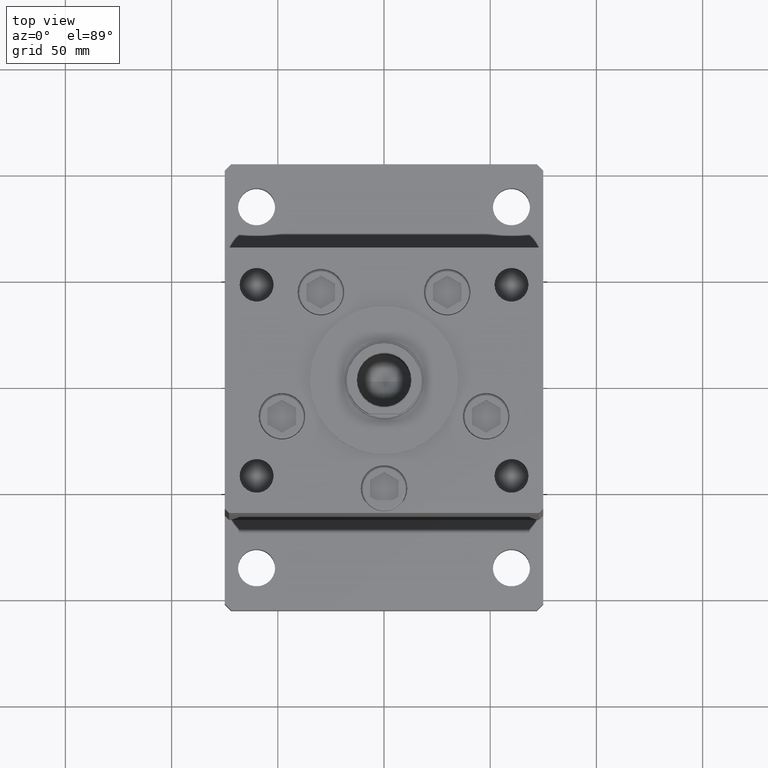
[diagram: clean part render]
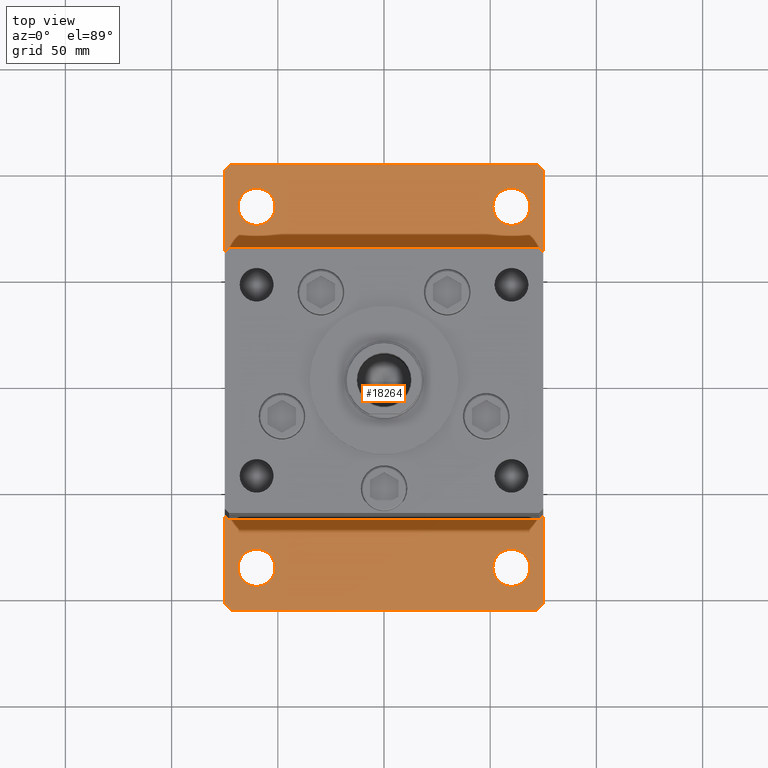
[diagram: same view with one face highlighted and labeled with its STEP entity id]
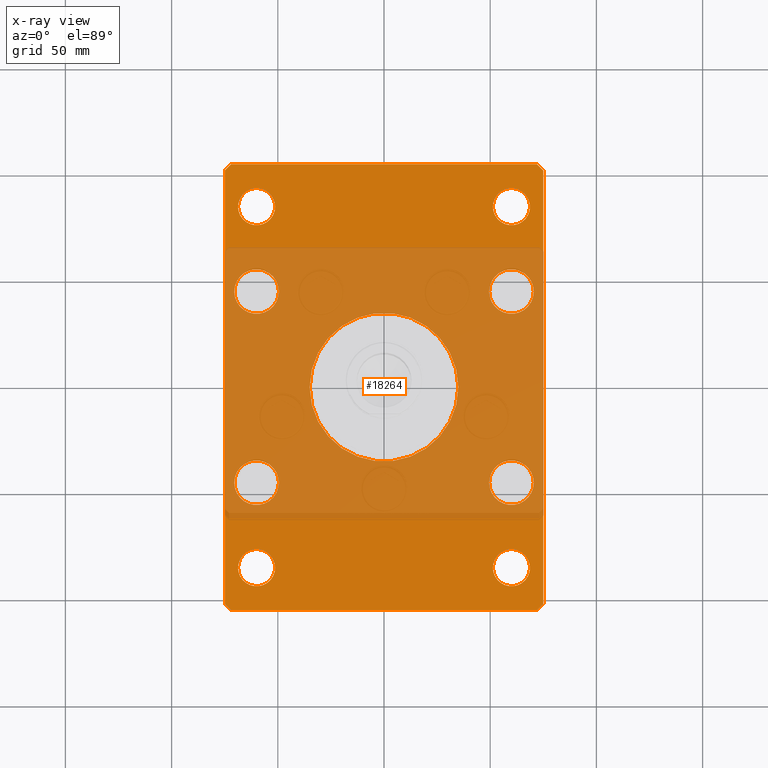
[diagram: x-ray of the same camera — body ghosted, the highlighted face saturated]
A machine part, top view. The second image highlights one B-rep face of the part: STEP entity #18264.
The next image is the same camera in x-ray: the body ghosted, the highlighted face saturated — about 55% of this face is hidden behind the body in this view.
In plain terms, the highlighted planar face has unit normal (0, 0, 1).
Its self-contained STEP definition (entity closure, byte-faithful):
#41 = ORIENTED_EDGE ( 'NONE', *, *, #27299, .T. ) ;
#538 = AXIS2_PLACEMENT_3D ( 'NONE', #43770, #6579, #22611 ) ;
#616 = VERTEX_POINT ( 'NONE', #46092 ) ;
#952 = VERTEX_POINT ( 'NONE', #38883 ) ;
#971 = ORIENTED_EDGE ( 'NONE', *, *, #37692, .F. ) ;
#1232 = VECTOR ( 'NONE', #52012, 1000.000000000000114 ) ;
#1340 = AXIS2_PLACEMENT_3D ( 'NONE', #27017, #17797, #9900 ) ;
#1426 = LINE ( 'NONE', #17998, #46339 ) ;
#1570 = CARTESIAN_POINT ( 'NONE',  ( -68.74999999999997158, -85.00000000000001421, 27.00000000000000000 ) ) ;
#1586 = CARTESIAN_POINT ( 'NONE',  ( 49.50000000000000000, -45.00000000000000711, 27.00000000000000000 ) ) ;
#1652 = CARTESIAN_POINT ( 'NONE',  ( 0.000000000000000000, 0.000000000000000000, 27.00000000000000000 ) ) ;
#1720 = AXIS2_PLACEMENT_3D ( 'NONE', #3481, #20053, #36611 ) ;
#2102 = EDGE_LOOP ( 'NONE', ( #30666, #45894 ) ) ;
#2457 = DIRECTION ( 'NONE',  ( 1.000000000000000000, 0.000000000000000000, 0.000000000000000000 ) ) ;
#3292 = DIRECTION ( 'NONE',  ( -1.000000000000000000, -1.927470528863118062E-16, 0.000000000000000000 ) ) ;
#3416 = CARTESIAN_POINT ( 'NONE',  ( 72.00000000000001421, -104.9999999999999005, 27.00000000000000000 ) ) ;
#3481 = CARTESIAN_POINT ( 'NONE',  ( -60.00000000000000711, 84.99999999999997158, 27.00000000000000000 ) ) ;
#3588 = DIRECTION ( 'NONE',  ( 1.000000000000000000, 0.000000000000000000, 0.000000000000000000 ) ) ;
#3709 = VERTEX_POINT ( 'NONE', #4363 ) ;
#4363 = CARTESIAN_POINT ( 'NONE',  ( 35.00000000000000711, 4.286263797015737285E-15, 27.00000000000000000 ) ) ;
#4417 = EDGE_CURVE ( 'NONE', #36140, #37148, #28545, .T. ) ;
#4455 = CARTESIAN_POINT ( 'NONE',  ( -74.99999999999998579, -102.0000000000000142, 27.00000000000000000 ) ) ;
#4516 = VERTEX_POINT ( 'NONE', #4904 ) ;
#4586 = CARTESIAN_POINT ( 'NONE',  ( 59.99999999999997158, -85.00000000000001421, 27.00000000000000000 ) ) ;
#4600 = CIRCLE ( 'NONE', #47058, 10.50000000000000178 ) ;
#4627 = VERTEX_POINT ( 'NONE', #24415 ) ;
#4636 = CARTESIAN_POINT ( 'NONE',  ( 60.00000000000000000, 84.99999999999998579, 27.00000000000000000 ) ) ;
#4859 = ORIENTED_EDGE ( 'NONE', *, *, #19368, .T. ) ;
#4904 = CARTESIAN_POINT ( 'NONE',  ( 68.74999999999997158, -85.00000000000001421, 27.00000000000000000 ) ) ;
#5153 = CIRCLE ( 'NONE', #1720, 8.750000000000007105 ) ;
#5232 = CARTESIAN_POINT ( 'NONE',  ( 75.00000000000001421, 102.0000000000000142, 27.00000000000000000 ) ) ;
#5271 = EDGE_CURVE ( 'NONE', #47930, #6363, #1426, .T. ) ;
#5556 = VERTEX_POINT ( 'NONE', #34632 ) ;
#6041 = EDGE_LOOP ( 'NONE', ( #42611, #52729 ) ) ;
#6363 = VERTEX_POINT ( 'NONE', #4455 ) ;
#6541 = CARTESIAN_POINT ( 'NONE',  ( 60.00000000000000000, -45.00000000000000711, 27.00000000000000000 ) ) ;
#6579 = DIRECTION ( 'NONE',  ( 0.000000000000000000, 0.000000000000000000, 1.000000000000000000 ) ) ;
#6797 = ORIENTED_EDGE ( 'NONE', *, *, #8470, .F. ) ;
#7016 = DIRECTION ( 'NONE',  ( 0.000000000000000000, 0.000000000000000000, 1.000000000000000000 ) ) ;
#7025 = VERTEX_POINT ( 'NONE', #39506 ) ;
#7387 = ORIENTED_EDGE ( 'NONE', *, *, #19939, .T. ) ;
#7532 = EDGE_CURVE ( 'NONE', #616, #3709, #46381, .T. ) ;
#7542 = AXIS2_PLACEMENT_3D ( 'NONE', #23455, #40013, #23722 ) ;
#7803 = DIRECTION ( 'NONE',  ( 1.000000000000000000, 0.000000000000000000, 0.000000000000000000 ) ) ;
#7863 = FACE_BOUND ( 'NONE', #43469, .T. ) ;
#7909 = CARTESIAN_POINT ( 'NONE',  ( 49.50000000000000000, 45.00000000000000711, 27.00000000000000000 ) ) ;
#8470 = EDGE_CURVE ( 'NONE', #20830, #7025, #45407, .T. ) ;
#9004 = CARTESIAN_POINT ( 'NONE',  ( 60.00000000000000000, 45.00000000000000711, 27.00000000000000000 ) ) ;
#9804 = DIRECTION ( 'NONE',  ( 1.000000000000000000, 0.000000000000000000, 0.000000000000000000 ) ) ;
#9900 = DIRECTION ( 'NONE',  ( 1.000000000000000000, 0.000000000000000000, 0.000000000000000000 ) ) ;
#9933 = AXIS2_PLACEMENT_3D ( 'NONE', #4586, #45582, #11918 ) ;
#10030 = CARTESIAN_POINT ( 'NONE',  ( -71.99999999999998579, -105.0000000000000142, 27.00000000000000000 ) ) ;
#10138 = VECTOR ( 'NONE', #12650, 1000.000000000000114 ) ;
#10151 = EDGE_CURVE ( 'NONE', #4627, #12962, #22893, .T. ) ;
#10152 = ORIENTED_EDGE ( 'NONE', *, *, #29744, .T. ) ;
#10282 = DIRECTION ( 'NONE',  ( 1.000000000000000000, 0.000000000000000000, 0.000000000000000000 ) ) ;
#10329 = DIRECTION ( 'NONE',  ( 0.000000000000000000, 0.000000000000000000, 1.000000000000000000 ) ) ;
#10614 = ORIENTED_EDGE ( 'NONE', *, *, #53429, .F. ) ;
#11047 = EDGE_CURVE ( 'NONE', #18133, #4516, #53257, .T. ) ;
#11482 = ORIENTED_EDGE ( 'NONE', *, *, #4417, .T. ) ;
#11918 = DIRECTION ( 'NONE',  ( 1.000000000000000000, 0.000000000000000000, 0.000000000000000000 ) ) ;
#12199 = CARTESIAN_POINT ( 'NONE',  ( 0.000000000000000000, 0.000000000000000000, 27.00000000000000000 ) ) ;
#12379 = CIRCLE ( 'NONE', #49664, 8.750000000000007105 ) ;
#12467 = DIRECTION ( 'NONE',  ( 6.802837160693364103E-17, 1.000000000000000000, 0.000000000000000000 ) ) ;
#12650 = DIRECTION ( 'NONE',  ( -0.7071067811865459074, -0.7071067811865491270, 0.000000000000000000 ) ) ;
#12962 = VERTEX_POINT ( 'NONE', #14660 ) ;
#13002 = CARTESIAN_POINT ( 'NONE',  ( 75.00000000000000000, -101.9999999999999005, 27.00000000000000000 ) ) ;
#13169 = ORIENTED_EDGE ( 'NONE', *, *, #26804, .F. ) ;
#14660 = CARTESIAN_POINT ( 'NONE',  ( 51.24999999999998579, 84.99999999999998579, 27.00000000000000000 ) ) ;
#14750 = VERTEX_POINT ( 'NONE', #1586 ) ;
#14931 = EDGE_CURVE ( 'NONE', #5556, #45077, #43850, .T. ) ;
#14954 = CARTESIAN_POINT ( 'NONE',  ( -60.00000000000000000, -45.00000000000000000, 27.00000000000000000 ) ) ;
#15120 = AXIS2_PLACEMENT_3D ( 'NONE', #1652, #10329, #2457 ) ;
#15203 = VECTOR ( 'NONE', #20093, 1000.000000000000114 ) ;
#15226 = EDGE_LOOP ( 'NONE', ( #13169, #971 ) ) ;
#15625 = CIRCLE ( 'NONE', #32131, 10.49999999999999467 ) ;
#15723 = FACE_BOUND ( 'NONE', #49194, .T. ) ;
#15935 = CARTESIAN_POINT ( 'NONE',  ( -60.00000000000000000, 45.00000000000001421, 27.00000000000000000 ) ) ;
#16340 = CARTESIAN_POINT ( 'NONE',  ( 60.00000000000000000, -45.00000000000000711, 27.00000000000000000 ) ) ;
#16358 = CARTESIAN_POINT ( 'NONE',  ( -51.24999999999996447, -85.00000000000001421, 27.00000000000000000 ) ) ;
#16555 = LINE ( 'NONE', #21899, #15203 ) ;
#16557 = DIRECTION ( 'NONE',  ( 1.000000000000000000, 0.000000000000000000, 0.000000000000000000 ) ) ;
#16720 = EDGE_LOOP ( 'NONE', ( #10152, #4859, #49841, #7387, #11482, #38356, #35424, #41 ) ) ;
#16751 = ORIENTED_EDGE ( 'NONE', *, *, #39645, .F. ) ;
#17003 = AXIS2_PLACEMENT_3D ( 'NONE', #15935, #45270, #7803 ) ;
#17035 = DIRECTION ( 'NONE',  ( 1.000000000000000000, 0.000000000000000000, 0.000000000000000000 ) ) ;
#17200 = DIRECTION ( 'NONE',  ( 1.360567432138672081E-16, -1.000000000000000000, 0.000000000000000000 ) ) ;
#17790 = EDGE_LOOP ( 'NONE', ( #16751, #27655 ) ) ;
#17797 = DIRECTION ( 'NONE',  ( 0.000000000000000000, 0.000000000000000000, 1.000000000000000000 ) ) ;
#17879 = EDGE_CURVE ( 'NONE', #3709, #616, #39629, .T. ) ;
#17998 = CARTESIAN_POINT ( 'NONE',  ( -75.00000000000001421, 102.0000000000000000, 27.00000000000000000 ) ) ;
#18133 = VERTEX_POINT ( 'NONE', #42393 ) ;
#18225 = CARTESIAN_POINT ( 'NONE',  ( -68.75000000000000000, 84.99999999999997158, 27.00000000000000000 ) ) ;
#18264 = ADVANCED_FACE ( 'NONE', ( #20087, #32860, #45325, #49123, #48588, #20354, #53715, #15723, #7863, #40716 ), #27960, .T. ) ;
#19324 = VERTEX_POINT ( 'NONE', #27603 ) ;
#19368 = EDGE_CURVE ( 'NONE', #20531, #19324, #48754, .T. ) ;
#19562 = ORIENTED_EDGE ( 'NONE', *, *, #51375, .F. ) ;
#19665 = ORIENTED_EDGE ( 'NONE', *, *, #51807, .F. ) ;
#19939 = EDGE_CURVE ( 'NONE', #952, #36140, #42955, .T. ) ;
#20053 = DIRECTION ( 'NONE',  ( 0.000000000000000000, 0.000000000000000000, 1.000000000000000000 ) ) ;
#20087 = FACE_BOUND ( 'NONE', #2102, .T. ) ;
#20093 = DIRECTION ( 'NONE',  ( 0.7071067811865474617, -0.7071067811865474617, 0.000000000000000000 ) ) ;
#20255 = DIRECTION ( 'NONE',  ( 1.000000000000000000, 0.000000000000000000, 0.000000000000000000 ) ) ;
#20354 = FACE_OUTER_BOUND ( 'NONE', #16720, .T. ) ;
#20531 = VERTEX_POINT ( 'NONE', #21407 ) ;
#20626 = AXIS2_PLACEMENT_3D ( 'NONE', #9004, #42658, #33735 ) ;
#20816 = LINE ( 'NONE', #37382, #10138 ) ;
#20830 = VERTEX_POINT ( 'NONE', #21000 ) ;
#21000 = CARTESIAN_POINT ( 'NONE',  ( -70.50000000000000000, -45.00000000000000000, 27.00000000000000000 ) ) ;
#21407 = CARTESIAN_POINT ( 'NONE',  ( 72.00000000000001421, -104.9999999999999005, 27.00000000000000000 ) ) ;
#21529 = EDGE_LOOP ( 'NONE', ( #48025, #19562 ) ) ;
#21899 = CARTESIAN_POINT ( 'NONE',  ( -74.99999999999998579, -102.0000000000000142, 27.00000000000000000 ) ) ;
#21916 = CARTESIAN_POINT ( 'NONE',  ( -60.00000000000000000, -45.00000000000000000, 27.00000000000000000 ) ) ;
#22127 = VERTEX_POINT ( 'NONE', #7909 ) ;
#22236 = VECTOR ( 'NONE', #34766, 1000.000000000000000 ) ;
#22611 = DIRECTION ( 'NONE',  ( 1.000000000000000000, 0.000000000000000000, 0.000000000000000000 ) ) ;
#22893 = CIRCLE ( 'NONE', #47179, 8.750000000000007105 ) ;
#23455 = CARTESIAN_POINT ( 'NONE',  ( 60.00000000000000000, 84.99999999999998579, 27.00000000000000000 ) ) ;
#23556 = EDGE_CURVE ( 'NONE', #28713, #33393, #50832, .T. ) ;
#23722 = DIRECTION ( 'NONE',  ( 1.000000000000000000, 0.000000000000000000, 0.000000000000000000 ) ) ;
#23825 = CARTESIAN_POINT ( 'NONE',  ( 0.000000000000000000, 0.000000000000000000, 27.00000000000000000 ) ) ;
#24124 = CARTESIAN_POINT ( 'NONE',  ( 59.99999999999997158, -85.00000000000001421, 27.00000000000000000 ) ) ;
#24415 = CARTESIAN_POINT ( 'NONE',  ( 68.75000000000000000, 84.99999999999998579, 27.00000000000000000 ) ) ;
#24624 = EDGE_LOOP ( 'NONE', ( #19665, #52763 ) ) ;
#24748 = DIRECTION ( 'NONE',  ( 1.000000000000000000, 0.000000000000000000, 0.000000000000000000 ) ) ;
#25512 = LINE ( 'NONE', #13002, #42656 ) ;
#25740 = DIRECTION ( 'NONE',  ( 0.000000000000000000, 0.000000000000000000, 1.000000000000000000 ) ) ;
#25832 = LINE ( 'NONE', #10030, #22236 ) ;
#26350 = VECTOR ( 'NONE', #3292, 1000.000000000000000 ) ;
#26804 = EDGE_CURVE ( 'NONE', #27935, #31619, #48147, .T. ) ;
#26942 = VERTEX_POINT ( 'NONE', #48662 ) ;
#27017 = CARTESIAN_POINT ( 'NONE',  ( -60.00000000000000711, 84.99999999999997158, 27.00000000000000000 ) ) ;
#27299 = EDGE_CURVE ( 'NONE', #6363, #45704, #16555, .T. ) ;
#27603 = CARTESIAN_POINT ( 'NONE',  ( 75.00000000000000000, -101.9999999999999005, 27.00000000000000000 ) ) ;
#27655 = ORIENTED_EDGE ( 'NONE', *, *, #23556, .F. ) ;
#27755 = ORIENTED_EDGE ( 'NONE', *, *, #40118, .F. ) ;
#27935 = VERTEX_POINT ( 'NONE', #18225 ) ;
#27960 = PLANE ( 'NONE',  #30437 ) ;
#28083 = AXIS2_PLACEMENT_3D ( 'NONE', #21916, #25740, #46350 ) ;
#28407 = CIRCLE ( 'NONE', #20626, 10.49999999999999467 ) ;
#28545 = LINE ( 'NONE', #53220, #26350 ) ;
#28642 = AXIS2_PLACEMENT_3D ( 'NONE', #47743, #7016, #10282 ) ;
#28713 = VERTEX_POINT ( 'NONE', #16358 ) ;
#28842 = DIRECTION ( 'NONE',  ( 0.000000000000000000, 0.000000000000000000, 1.000000000000000000 ) ) ;
#28935 = CARTESIAN_POINT ( 'NONE',  ( 60.00000000000000000, 45.00000000000000711, 27.00000000000000000 ) ) ;
#29217 = AXIS2_PLACEMENT_3D ( 'NONE', #23825, #32794, #40374 ) ;
#29645 = AXIS2_PLACEMENT_3D ( 'NONE', #16340, #28842, #3588 ) ;
#29713 = CARTESIAN_POINT ( 'NONE',  ( -71.99999999999998579, -105.0000000000000142, 27.00000000000000000 ) ) ;
#29744 = EDGE_CURVE ( 'NONE', #45704, #20531, #25832, .T. ) ;
#30206 = EDGE_CURVE ( 'NONE', #37148, #47930, #20816, .T. ) ;
#30437 = AXIS2_PLACEMENT_3D ( 'NONE', #12199, #32582, #48852 ) ;
#30666 = ORIENTED_EDGE ( 'NONE', *, *, #7532, .F. ) ;
#30773 = CARTESIAN_POINT ( 'NONE',  ( 72.00000000000004263, 105.0000000000000284, 27.00000000000000000 ) ) ;
#31000 = DIRECTION ( 'NONE',  ( 0.000000000000000000, 0.000000000000000000, 1.000000000000000000 ) ) ;
#31619 = VERTEX_POINT ( 'NONE', #45667 ) ;
#31719 = EDGE_CURVE ( 'NONE', #26942, #22127, #28407, .T. ) ;
#32131 = AXIS2_PLACEMENT_3D ( 'NONE', #28935, #37358, #20255 ) ;
#32582 = DIRECTION ( 'NONE',  ( 0.000000000000000000, 0.000000000000000000, 1.000000000000000000 ) ) ;
#32794 = DIRECTION ( 'NONE',  ( 0.000000000000000000, 0.000000000000000000, 1.000000000000000000 ) ) ;
#32860 = FACE_BOUND ( 'NONE', #6041, .T. ) ;
#33393 = VERTEX_POINT ( 'NONE', #1570 ) ;
#33677 = CARTESIAN_POINT ( 'NONE',  ( -60.00000000000000000, 45.00000000000001421, 27.00000000000000000 ) ) ;
#33710 = DIRECTION ( 'NONE',  ( 0.000000000000000000, 0.000000000000000000, 1.000000000000000000 ) ) ;
#33735 = DIRECTION ( 'NONE',  ( 1.000000000000000000, 0.000000000000000000, 0.000000000000000000 ) ) ;
#34632 = CARTESIAN_POINT ( 'NONE',  ( -49.49999999999999289, 45.00000000000001421, 27.00000000000000000 ) ) ;
#34727 = CIRCLE ( 'NONE', #28642, 8.750000000000007105 ) ;
#34766 = DIRECTION ( 'NONE',  ( 1.000000000000000000, 7.709882115452476194E-16, 0.000000000000000000 ) ) ;
#35424 = ORIENTED_EDGE ( 'NONE', *, *, #5271, .T. ) ;
#36140 = VERTEX_POINT ( 'NONE', #30773 ) ;
#36611 = DIRECTION ( 'NONE',  ( 1.000000000000000000, 0.000000000000000000, 0.000000000000000000 ) ) ;
#37020 = CARTESIAN_POINT ( 'NONE',  ( -72.00000000000002842, 105.0000000000000000, 27.00000000000000000 ) ) ;
#37148 = VERTEX_POINT ( 'NONE', #37020 ) ;
#37358 = DIRECTION ( 'NONE',  ( 0.000000000000000000, 0.000000000000000000, 1.000000000000000000 ) ) ;
#37382 = CARTESIAN_POINT ( 'NONE',  ( -72.00000000000002842, 105.0000000000000000, 27.00000000000000000 ) ) ;
#37439 = ORIENTED_EDGE ( 'NONE', *, *, #10151, .F. ) ;
#37474 = CIRCLE ( 'NONE', #29645, 10.49999999999999467 ) ;
#37692 = EDGE_CURVE ( 'NONE', #31619, #27935, #5153, .T. ) ;
#38356 = ORIENTED_EDGE ( 'NONE', *, *, #30206, .T. ) ;
#38566 = VECTOR ( 'NONE', #38615, 1000.000000000000000 ) ;
#38615 = DIRECTION ( 'NONE',  ( -0.7071067811865426878, 0.7071067811865524577, 0.000000000000000000 ) ) ;
#38883 = CARTESIAN_POINT ( 'NONE',  ( 75.00000000000001421, 102.0000000000000142, 27.00000000000000000 ) ) ;
#39506 = CARTESIAN_POINT ( 'NONE',  ( -49.49999999999999289, -45.00000000000000000, 27.00000000000000000 ) ) ;
#39629 = CIRCLE ( 'NONE', #29217, 35.00000000000000711 ) ;
#39645 = EDGE_CURVE ( 'NONE', #33393, #28713, #34727, .T. ) ;
#39684 = DIRECTION ( 'NONE',  ( 1.000000000000000000, 0.000000000000000000, 0.000000000000000000 ) ) ;
#40013 = DIRECTION ( 'NONE',  ( 0.000000000000000000, 0.000000000000000000, 1.000000000000000000 ) ) ;
#40118 = EDGE_CURVE ( 'NONE', #22127, #26942, #15625, .T. ) ;
#40371 = VERTEX_POINT ( 'NONE', #43725 ) ;
#40374 = DIRECTION ( 'NONE',  ( 1.000000000000000000, 0.000000000000000000, 0.000000000000000000 ) ) ;
#40668 = DIRECTION ( 'NONE',  ( 0.000000000000000000, 0.000000000000000000, 1.000000000000000000 ) ) ;
#40716 = FACE_BOUND ( 'NONE', #21529, .T. ) ;
#41077 = EDGE_LOOP ( 'NONE', ( #10614, #37439 ) ) ;
#41310 = AXIS2_PLACEMENT_3D ( 'NONE', #6541, #51594, #9804 ) ;
#41346 = AXIS2_PLACEMENT_3D ( 'NONE', #14954, #31000, #39684 ) ;
#42393 = CARTESIAN_POINT ( 'NONE',  ( 51.24999999999995737, -85.00000000000001421, 27.00000000000000000 ) ) ;
#42611 = ORIENTED_EDGE ( 'NONE', *, *, #50392, .F. ) ;
#42656 = VECTOR ( 'NONE', #12467, 1000.000000000000000 ) ;
#42658 = DIRECTION ( 'NONE',  ( 0.000000000000000000, 0.000000000000000000, 1.000000000000000000 ) ) ;
#42955 = LINE ( 'NONE', #5232, #38566 ) ;
#43469 = EDGE_LOOP ( 'NONE', ( #27755, #46684 ) ) ;
#43725 = CARTESIAN_POINT ( 'NONE',  ( 70.50000000000000000, -45.00000000000000711, 27.00000000000000000 ) ) ;
#43770 = CARTESIAN_POINT ( 'NONE',  ( -59.99999999999997158, -85.00000000000001421, 27.00000000000000000 ) ) ;
#43850 = CIRCLE ( 'NONE', #17003, 10.50000000000000178 ) ;
#45077 = VERTEX_POINT ( 'NONE', #45655 ) ;
#45270 = DIRECTION ( 'NONE',  ( 0.000000000000000000, 0.000000000000000000, 1.000000000000000000 ) ) ;
#45325 = FACE_BOUND ( 'NONE', #24624, .T. ) ;
#45407 = CIRCLE ( 'NONE', #28083, 10.50000000000000178 ) ;
#45582 = DIRECTION ( 'NONE',  ( 0.000000000000000000, 0.000000000000000000, 1.000000000000000000 ) ) ;
#45655 = CARTESIAN_POINT ( 'NONE',  ( -70.50000000000000000, 45.00000000000001421, 27.00000000000000000 ) ) ;
#45667 = CARTESIAN_POINT ( 'NONE',  ( -51.25000000000000000, 84.99999999999997158, 27.00000000000000000 ) ) ;
#45704 = VERTEX_POINT ( 'NONE', #29713 ) ;
#45894 = ORIENTED_EDGE ( 'NONE', *, *, #17879, .F. ) ;
#46092 = CARTESIAN_POINT ( 'NONE',  ( -35.00000000000000711, 0.000000000000000000, 27.00000000000000000 ) ) ;
#46339 = VECTOR ( 'NONE', #17200, 1000.000000000000000 ) ;
#46350 = DIRECTION ( 'NONE',  ( 1.000000000000000000, 0.000000000000000000, 0.000000000000000000 ) ) ;
#46381 = CIRCLE ( 'NONE', #15120, 35.00000000000000711 ) ;
#46531 = CIRCLE ( 'NONE', #41310, 10.49999999999999467 ) ;
#46567 = CIRCLE ( 'NONE', #41346, 10.50000000000000178 ) ;
#46684 = ORIENTED_EDGE ( 'NONE', *, *, #31719, .F. ) ;
#47045 = CARTESIAN_POINT ( 'NONE',  ( -75.00000000000001421, 102.0000000000000000, 27.00000000000000000 ) ) ;
#47058 = AXIS2_PLACEMENT_3D ( 'NONE', #33677, #49670, #16557 ) ;
#47149 = ORIENTED_EDGE ( 'NONE', *, *, #53664, .F. ) ;
#47179 = AXIS2_PLACEMENT_3D ( 'NONE', #4636, #33710, #24748 ) ;
#47743 = CARTESIAN_POINT ( 'NONE',  ( -59.99999999999997158, -85.00000000000001421, 27.00000000000000000 ) ) ;
#47930 = VERTEX_POINT ( 'NONE', #47045 ) ;
#48025 = ORIENTED_EDGE ( 'NONE', *, *, #11047, .F. ) ;
#48029 = EDGE_CURVE ( 'NONE', #40371, #14750, #37474, .T. ) ;
#48147 = CIRCLE ( 'NONE', #1340, 8.750000000000007105 ) ;
#48322 = EDGE_CURVE ( 'NONE', #19324, #952, #25512, .T. ) ;
#48588 = FACE_BOUND ( 'NONE', #17790, .T. ) ;
#48662 = CARTESIAN_POINT ( 'NONE',  ( 70.50000000000000000, 45.00000000000000711, 27.00000000000000000 ) ) ;
#48754 = LINE ( 'NONE', #3416, #1232 ) ;
#48852 = DIRECTION ( 'NONE',  ( 1.000000000000000000, 0.000000000000000000, -0.000000000000000000 ) ) ;
#49123 = FACE_BOUND ( 'NONE', #15226, .T. ) ;
#49194 = EDGE_LOOP ( 'NONE', ( #6797, #47149 ) ) ;
#49664 = AXIS2_PLACEMENT_3D ( 'NONE', #24124, #40668, #17035 ) ;
#49670 = DIRECTION ( 'NONE',  ( 0.000000000000000000, 0.000000000000000000, 1.000000000000000000 ) ) ;
#49841 = ORIENTED_EDGE ( 'NONE', *, *, #48322, .T. ) ;
#50392 = EDGE_CURVE ( 'NONE', #45077, #5556, #4600, .T. ) ;
#50832 = CIRCLE ( 'NONE', #538, 8.750000000000007105 ) ;
#51375 = EDGE_CURVE ( 'NONE', #4516, #18133, #12379, .T. ) ;
#51594 = DIRECTION ( 'NONE',  ( 0.000000000000000000, 0.000000000000000000, 1.000000000000000000 ) ) ;
#51807 = EDGE_CURVE ( 'NONE', #14750, #40371, #46531, .T. ) ;
#52012 = DIRECTION ( 'NONE',  ( 0.7071067811865459074, 0.7071067811865491270, 0.000000000000000000 ) ) ;
#52729 = ORIENTED_EDGE ( 'NONE', *, *, #14931, .F. ) ;
#52763 = ORIENTED_EDGE ( 'NONE', *, *, #48029, .F. ) ;
#53220 = CARTESIAN_POINT ( 'NONE',  ( 72.00000000000004263, 105.0000000000000284, 27.00000000000000000 ) ) ;
#53257 = CIRCLE ( 'NONE', #9933, 8.750000000000007105 ) ;
#53429 = EDGE_CURVE ( 'NONE', #12962, #4627, #53488, .T. ) ;
#53488 = CIRCLE ( 'NONE', #7542, 8.750000000000007105 ) ;
#53664 = EDGE_CURVE ( 'NONE', #7025, #20830, #46567, .T. ) ;
#53715 = FACE_BOUND ( 'NONE', #41077, .T. ) ;